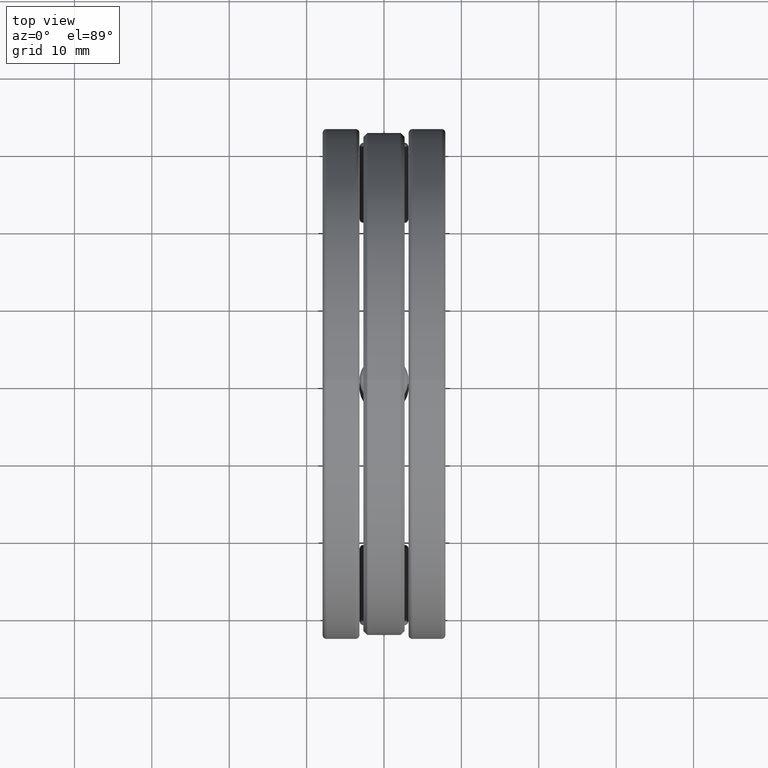
[diagram: clean part render]
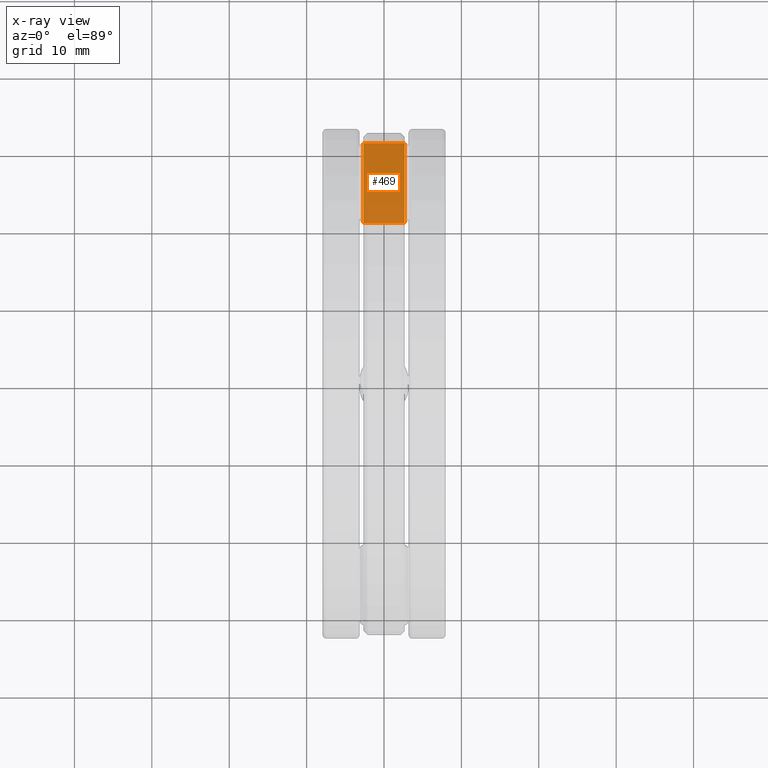
[diagram: x-ray — body ghosted, one internal face saturated and labeled with its STEP entity id]
A machine part, top view, then the same camera in x-ray: the body is ghosted and one INTERNAL B-rep face — a face not visible from any outside direction — is saturated and labeled: STEP entity #469.
In plain terms, the highlighted planar face has unit normal (0, 0, -1).
Its self-contained STEP definition (entity closure, byte-faithful):
#9 = DIRECTION ( 'NONE',  ( -0.0000000000000000000, 1.000000000000000000, 8.392774174083766400E-017 ) ) ;
#19 = CARTESIAN_POINT ( 'NONE',  ( -0.1050000000000000400, 0.8200000000000001700, -0.1250000000000000300 ) ) ;
#46 = LINE ( 'NONE', #1454, #1277 ) ;
#49 = EDGE_LOOP ( 'NONE', ( #881, #753, #968, #283 ) ) ;
#67 = CARTESIAN_POINT ( 'NONE',  ( -0.1050000000000000400, 1.226874999999999700, -0.1249999999999999900 ) ) ;
#77 = DIRECTION ( 'NONE',  ( 1.000000000000000000, -0.0000000000000000000, -0.0000000000000000000 ) ) ;
#79 = EDGE_CURVE ( 'NONE', #126, #608, #716, .T. ) ;
#81 = LINE ( 'NONE', #1192, #1250 ) ;
#126 = VERTEX_POINT ( 'NONE', #449 ) ;
#283 = ORIENTED_EDGE ( 'NONE', *, *, #505, .T. ) ;
#310 = DIRECTION ( 'NONE',  ( 0.0000000000000000000, 8.392774174083766400E-017, -1.000000000000000000 ) ) ;
#374 = VECTOR ( 'NONE', #877, 39.37007874015748100 ) ;
#405 = CARTESIAN_POINT ( 'NONE',  ( -0.3125000000000000600, 0.8200000000000001700, -0.1250000000000000300 ) ) ;
#449 = CARTESIAN_POINT ( 'NONE',  ( 0.1050000000000000400, 0.8200000000000001700, -0.1250000000000000300 ) ) ;
#469 = ADVANCED_FACE ( 'NONE', ( #853 ), #741, .F. ) ;
#496 = VERTEX_POINT ( 'NONE', #67 ) ;
#505 = EDGE_CURVE ( 'NONE', #666, #126, #81, .T. ) ;
#560 = EDGE_CURVE ( 'NONE', #666, #496, #46, .T. ) ;
#608 = VERTEX_POINT ( 'NONE', #909 ) ;
#666 = VERTEX_POINT ( 'NONE', #19 ) ;
#716 = LINE ( 'NONE', #1219, #374 ) ;
#741 = PLANE ( 'NONE',  #1159 ) ;
#753 = ORIENTED_EDGE ( 'NONE', *, *, #1080, .F. ) ;
#785 = DIRECTION ( 'NONE',  ( 1.000000000000000000, -0.0000000000000000000, -0.0000000000000000000 ) ) ;
#853 = FACE_OUTER_BOUND ( 'NONE', #49, .T. ) ;
#877 = DIRECTION ( 'NONE',  ( -0.0000000000000000000, 1.000000000000000000, 8.392774174083766400E-017 ) ) ;
#881 = ORIENTED_EDGE ( 'NONE', *, *, #79, .T. ) ;
#909 = CARTESIAN_POINT ( 'NONE',  ( 0.1050000000000000400, 1.226874999999999700, -0.1249999999999999900 ) ) ;
#968 = ORIENTED_EDGE ( 'NONE', *, *, #560, .F. ) ;
#988 = CARTESIAN_POINT ( 'NONE',  ( -0.3125000000000000600, 1.226874999999999700, -0.1249999999999999900 ) ) ;
#1080 = EDGE_CURVE ( 'NONE', #496, #608, #1425, .T. ) ;
#1159 = AXIS2_PLACEMENT_3D ( 'NONE', #405, #310, #1205 ) ;
#1192 = CARTESIAN_POINT ( 'NONE',  ( -0.3125000000000000600, 0.8200000000000001700, -0.1250000000000000300 ) ) ;
#1205 = DIRECTION ( 'NONE',  ( 0.0000000000000000000, 1.000000000000000000, 8.392774174083766400E-017 ) ) ;
#1219 = CARTESIAN_POINT ( 'NONE',  ( 0.1050000000000000400, 2.201080865474319500E-017, -0.1250000000000000800 ) ) ;
#1250 = VECTOR ( 'NONE', #77, 39.37007874015748100 ) ;
#1277 = VECTOR ( 'NONE', #9, 39.37007874015748100 ) ;
#1357 = VECTOR ( 'NONE', #785, 39.37007874015748100 ) ;
#1425 = LINE ( 'NONE', #988, #1357 ) ;
#1454 = CARTESIAN_POINT ( 'NONE',  ( -0.1050000000000000200, 2.811073759512403500E-018, -0.1250000000000000800 ) ) ;